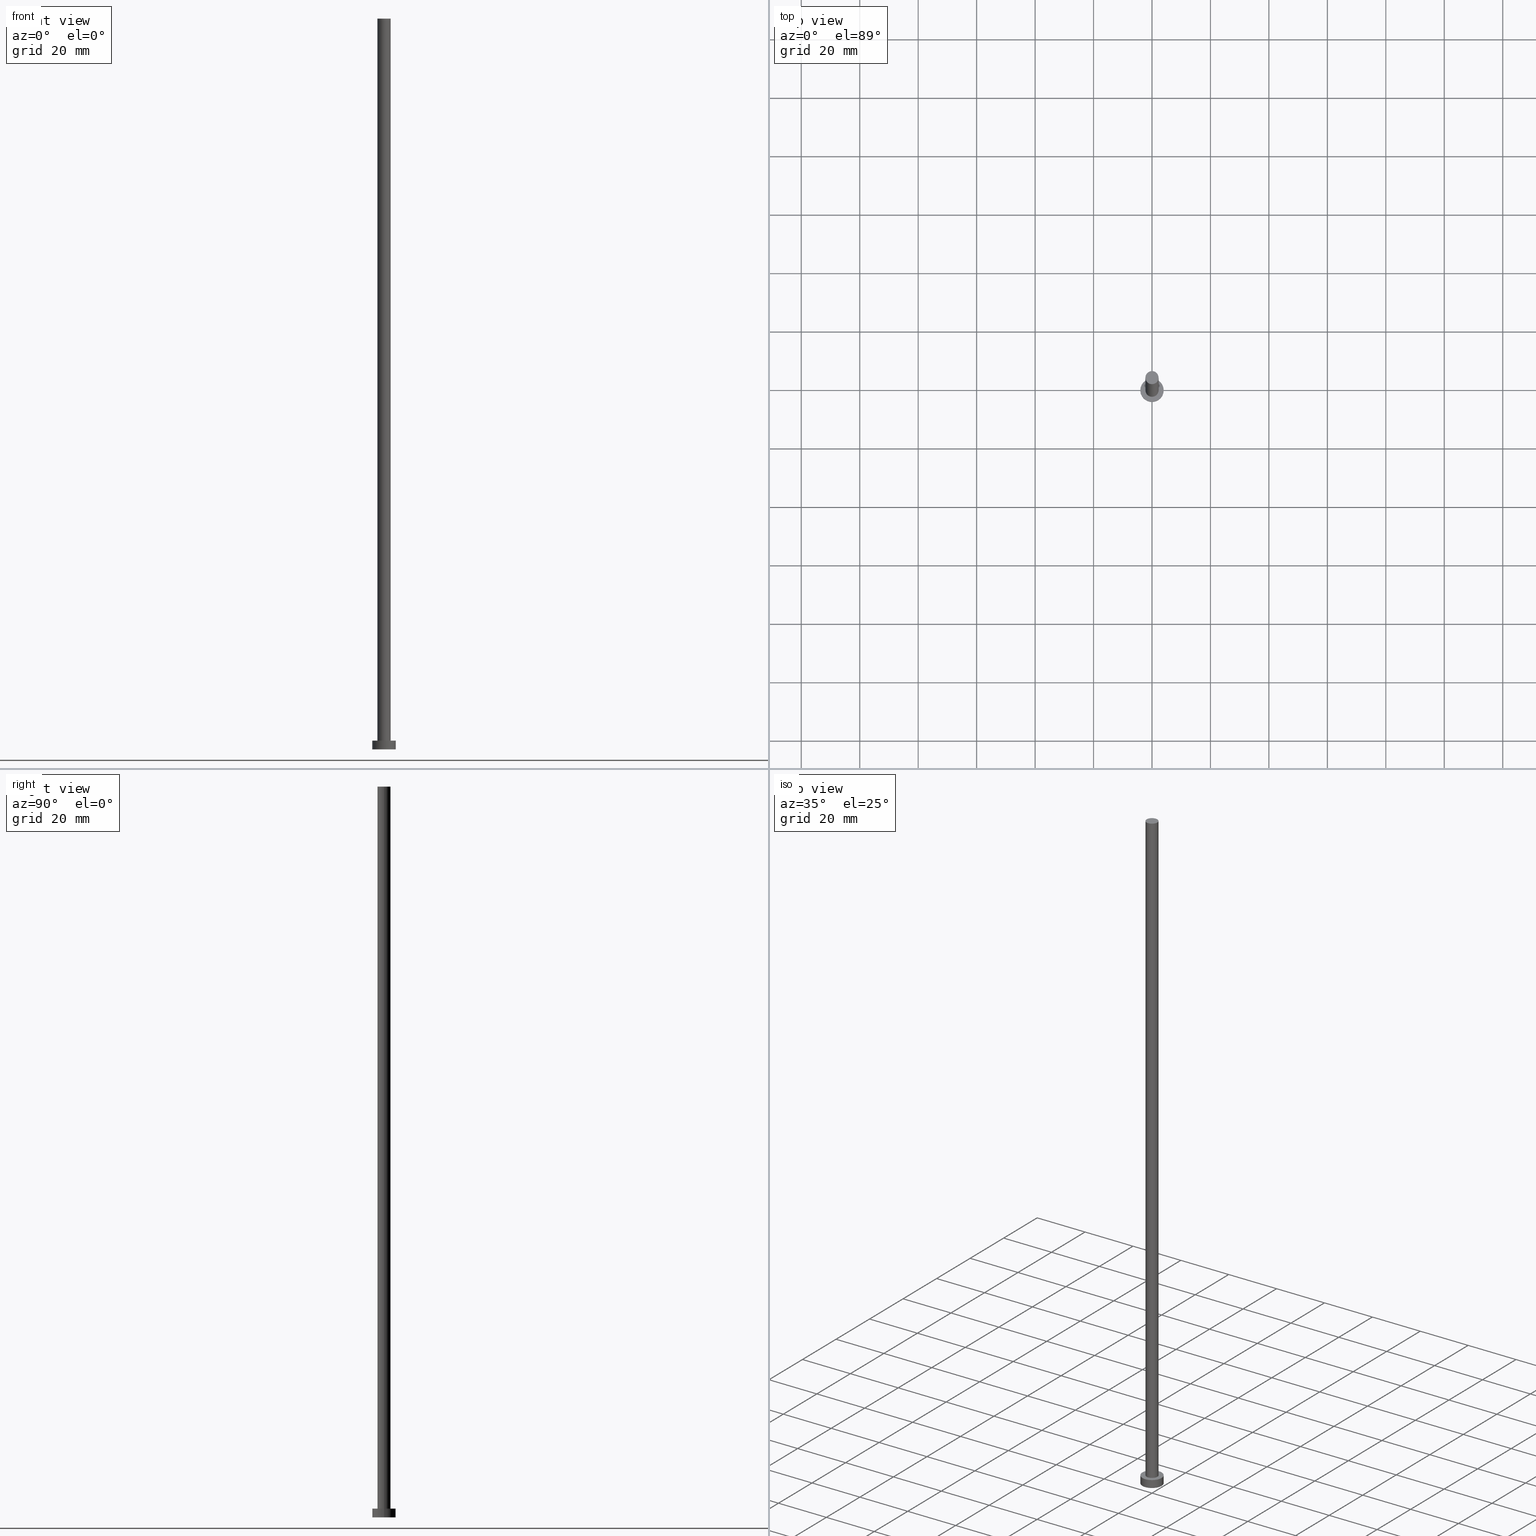
[diagram: canonical four-view strip — front | top / right | iso, engineering-drawing reading convention]
A machine part, canonical four-view strip (front | top / right | iso — engineering-drawing reading convention). The complete STEP part file that produces these views, byte-faithful:
ISO-10303-21;
HEADER;
FILE_DESCRIPTION (( 'STEP AP203' ),
    '1' );
FILE_NAME ('ba29.STEP',
    '2023-02-12T11:53:00',
    ( '' ),
    ( '' ),
    'SwSTEP 2.0',
    'SolidWorks 2019',
    '' );
FILE_SCHEMA (( 'CONFIG_CONTROL_DESIGN' ));
ENDSEC;

DATA;
#1 = CARTESIAN_POINT ( 'NONE',  ( 0.000000000000000000, 0.000000000000000000, 250.0000000000000000 ) ) ;
#2 = EDGE_CURVE ( 'NONE', #163, #103, #219, .T. ) ;
#3 = APPLICATION_PROTOCOL_DEFINITION ( 'international standard', 'config_control_design', 1994, #34 ) ;
#4 = DIRECTION ( 'NONE',  ( 1.000000000000000000, 0.000000000000000000, 0.000000000000000000 ) ) ;
#5 = PRODUCT_DEFINITION ( 'NEZN�M�', '', #229, #173 ) ;
#6 = EDGE_LOOP ( 'NONE', ( #181, #48 ) ) ;
#7 = CIRCLE ( 'NONE', #230, 2.250000000000000000 ) ;
#8 = ORIENTED_EDGE ( 'NONE', *, *, #140, .F. ) ;
#9 = ORIENTED_EDGE ( 'NONE', *, *, #47, .F. ) ;
#10 = MECHANICAL_CONTEXT ( 'NONE', #34, 'mechanical' ) ;
#11 = CYLINDRICAL_SURFACE ( 'NONE', #100, 2.250000000000000000 ) ;
#12 = APPLICATION_PROTOCOL_DEFINITION ( 'international standard', 'config_control_design', 1994, #113 ) ;
#13 = DIRECTION ( 'NONE',  ( -1.000000000000000000, 0.000000000000000000, 0.000000000000000000 ) ) ;
#14 = COORDINATED_UNIVERSAL_TIME_OFFSET ( 1, 0, .AHEAD. ) ;
#15 = PERSON_AND_ORGANIZATION ( #213, #159 ) ;
#16 = PERSON_AND_ORGANIZATION ( #213, #159 ) ;
#17 = AXIS2_PLACEMENT_3D ( 'NONE', #138, #105, #235 ) ;
#18 = LINE ( 'NONE', #134, #25 ) ;
#19 = LOCAL_TIME ( 12, 53, 0.000000000000000000, #14 ) ;
#20 = CIRCLE ( 'NONE', #96, 2.250000000000000000 ) ;
#21 = PLANE ( 'NONE',  #187 ) ;
#22 = CC_DESIGN_PERSON_AND_ORGANIZATION_ASSIGNMENT ( #28, #107, ( #229 ) ) ;
#23 = EDGE_LOOP ( 'NONE', ( #165, #63 ) ) ;
#24 = ORIENTED_EDGE ( 'NONE', *, *, #249, .T. ) ;
#25 = VECTOR ( 'NONE', #217, 1000.000000000000000 ) ;
#26 = PERSON_AND_ORGANIZATION ( #213, #159 ) ;
#27 = DIRECTION ( 'NONE',  ( 0.000000000000000000, 0.000000000000000000, 1.000000000000000000 ) ) ;
#28 = PERSON_AND_ORGANIZATION ( #213, #159 ) ;
#29 = CLOSED_SHELL ( 'NONE', ( #203, #157, #117, #82, #162, #130, #123 ) ) ;
#30 = APPROVAL_ROLE ( '' ) ;
#31 = FACE_OUTER_BOUND ( 'NONE', #206, .T. ) ;
#32 = EDGE_CURVE ( 'NONE', #102, #41, #7, .T. ) ;
#33 = SHAPE_DEFINITION_REPRESENTATION ( #254, #119 ) ;
#34 = APPLICATION_CONTEXT ( 'configuration controlled 3d designs of mechanical parts and assemblies' ) ;
#35 = DIRECTION ( 'NONE',  ( 0.000000000000000000, 0.000000000000000000, 1.000000000000000000 ) ) ;
#36 = DIRECTION ( 'NONE',  ( -0.000000000000000000, -0.000000000000000000, -1.000000000000000000 ) ) ;
#37 = CARTESIAN_POINT ( 'NONE',  ( -4.000000000000000000, 0.000000000000000000, 0.000000000000000000 ) ) ;
#38 = AXIS2_PLACEMENT_3D ( 'NONE', #1, #36, #115 ) ;
#39 = FACE_OUTER_BOUND ( 'NONE', #62, .T. ) ;
#40 = CARTESIAN_POINT ( 'NONE',  ( 0.000000000000000000, 0.000000000000000000, 250.0000000000000000 ) ) ;
#41 = VERTEX_POINT ( 'NONE', #60 ) ;
#42 = DIRECTION ( 'NONE',  ( 0.000000000000000000, 0.000000000000000000, 1.000000000000000000 ) ) ;
#43 = APPROVAL_PERSON_ORGANIZATION ( #167, #109, #185 ) ;
#44 = VERTEX_POINT ( 'NONE', #136 ) ;
#45 = CIRCLE ( 'NONE', #225, 2.250000000000000000 ) ;
#46 = DATE_AND_TIME ( #92, #251 ) ;
#47 = EDGE_CURVE ( 'NONE', #41, #102, #20, .T. ) ;
#48 = ORIENTED_EDGE ( 'NONE', *, *, #227, .F. ) ;
#49 = APPROVAL_STATUS ( 'not_yet_approved' ) ;
#50 = CC_DESIGN_APPROVAL ( #214, ( #209 ) ) ;
#51 = AXIS2_PLACEMENT_3D ( 'NONE', #73, #69, #233 ) ;
#52 = CC_DESIGN_DATE_AND_TIME_ASSIGNMENT ( #46, #66, ( #5 ) ) ;
#53 = COORDINATED_UNIVERSAL_TIME_OFFSET ( 1, 0, .AHEAD. ) ;
#54 = CARTESIAN_POINT ( 'NONE',  ( 0.000000000000000000, 0.000000000000000000, 3.000000000000000000 ) ) ;
#55 = MANIFOLD_SOLID_BREP ( 'P�idat vysunut�m3', #29 ) ;
#56 = DIRECTION ( 'NONE',  ( -0.000000000000000000, -0.000000000000000000, -1.000000000000000000 ) ) ;
#57 = FACE_OUTER_BOUND ( 'NONE', #160, .T. ) ;
#58 = DIRECTION ( 'NONE',  ( -0.000000000000000000, -0.000000000000000000, -1.000000000000000000 ) ) ;
#59 = DIRECTION ( 'NONE',  ( 0.000000000000000000, 0.000000000000000000, 1.000000000000000000 ) ) ;
#60 = CARTESIAN_POINT ( 'NONE',  ( -2.250000000000000000, 0.000000000000000000, 3.000000000000000000 ) ) ;
#61 = EDGE_CURVE ( 'NONE', #232, #44, #45, .T. ) ;
#62 = EDGE_LOOP ( 'NONE', ( #124, #24, #242, #8 ) ) ;
#63 = ORIENTED_EDGE ( 'NONE', *, *, #178, .T. ) ;
#64 = ORIENTED_EDGE ( 'NONE', *, *, #194, .F. ) ;
#65 = VECTOR ( 'NONE', #149, 1000.000000000000000 ) ;
#66 = DATE_TIME_ROLE ( 'creation_date' ) ;
#67 = DATE_AND_TIME ( #172, #19 ) ;
#68 = PERSON_AND_ORGANIZATION ( #213, #159 ) ;
#69 = DIRECTION ( 'NONE',  ( 0.000000000000000000, 0.000000000000000000, 1.000000000000000000 ) ) ;
#70 = EDGE_CURVE ( 'NONE', #44, #102, #161, .T. ) ;
#71 = COORDINATED_UNIVERSAL_TIME_OFFSET ( 1, 0, .AHEAD. ) ;
#72 = AXIS2_PLACEMENT_3D ( 'NONE', #238, #175, #179 ) ;
#73 = CARTESIAN_POINT ( 'NONE',  ( 0.000000000000000000, 0.000000000000000000, 3.000000000000000000 ) ) ;
#74 = LINE ( 'NONE', #98, #252 ) ;
#75 = APPROVAL_PERSON_ORGANIZATION ( #68, #223, #110 ) ;
#76 = CARTESIAN_POINT ( 'NONE',  ( 0.000000000000000000, 0.000000000000000000, 3.000000000000000000 ) ) ;
#77 = PRODUCT_RELATED_PRODUCT_CATEGORY ( 'detail', '', ( #201 ) ) ;
#78 = LINE ( 'NONE', #197, #246 ) ;
#79 = DIRECTION ( 'NONE',  ( -1.000000000000000000, 0.000000000000000000, 0.000000000000000000 ) ) ;
#80 = AXIS2_PLACEMENT_3D ( 'NONE', #158, #59, #222 ) ;
#81 = VERTEX_POINT ( 'NONE', #174 ) ;
#82 = ADVANCED_FACE ( 'NONE', ( #253, #191 ), #145, .T. ) ;
#83 = ORIENTED_EDGE ( 'NONE', *, *, #154, .F. ) ;
#84 = AXIS2_PLACEMENT_3D ( 'NONE', #54, #250, #171 ) ;
#85 = EDGE_LOOP ( 'NONE', ( #184, #205 ) ) ;
#86 = ORIENTED_EDGE ( 'NONE', *, *, #70, .F. ) ;
#87 = CC_DESIGN_PERSON_AND_ORGANIZATION_ASSIGNMENT ( #188, #211, ( #209 ) ) ;
#88 = AXIS2_PLACEMENT_3D ( 'NONE', #237, #200, #133 ) ;
#89 = CARTESIAN_POINT ( 'NONE',  ( 0.000000000000000000, 0.000000000000000000, 250.0000000000000000 ) ) ;
#90 = COORDINATED_UNIVERSAL_TIME_OFFSET ( 1, 0, .AHEAD. ) ;
#91 = APPROVAL_DATE_TIME ( #67, #214 ) ;
#92 = CALENDAR_DATE ( 2023, 12, 2 ) ;
#93 =( GEOMETRIC_REPRESENTATION_CONTEXT ( 3 ) GLOBAL_UNCERTAINTY_ASSIGNED_CONTEXT ( ( #146 ) ) GLOBAL_UNIT_ASSIGNED_CONTEXT ( ( #116, #104, #231 ) ) REPRESENTATION_CONTEXT ( 'NONE', 'WORKASPACE' ) );
#94 = CARTESIAN_POINT ( 'NONE',  ( 0.000000000000000000, 0.000000000000000000, 3.000000000000000000 ) ) ;
#95 = LOCAL_TIME ( 12, 53, 0.000000000000000000, #71 ) ;
#96 = AXIS2_PLACEMENT_3D ( 'NONE', #101, #224, #226 ) ;
#97 = CC_DESIGN_PERSON_AND_ORGANIZATION_ASSIGNMENT ( #168, #126, ( #229 ) ) ;
#98 = CARTESIAN_POINT ( 'NONE',  ( -4.000000000000000000, 0.000000000000000000, 3.000000000000000000 ) ) ;
#99 = DIRECTION ( 'NONE',  ( 0.000000000000000000, 0.000000000000000000, 1.000000000000000000 ) ) ;
#100 = AXIS2_PLACEMENT_3D ( 'NONE', #89, #189, #13 ) ;
#101 = CARTESIAN_POINT ( 'NONE',  ( 0.000000000000000000, 0.000000000000000000, 3.000000000000000000 ) ) ;
#102 = VERTEX_POINT ( 'NONE', #152 ) ;
#103 = VERTEX_POINT ( 'NONE', #236 ) ;
#104 =( NAMED_UNIT ( * ) PLANE_ANGLE_UNIT ( ) SI_UNIT ( $, .RADIAN. ) );
#105 = DIRECTION ( 'NONE',  ( 0.000000000000000000, 0.000000000000000000, 1.000000000000000000 ) ) ;
#106 = DIRECTION ( 'NONE',  ( 1.000000000000000000, 0.000000000000000000, 0.000000000000000000 ) ) ;
#107 = PERSON_AND_ORGANIZATION_ROLE ( 'creator' ) ;
#108 = FACE_OUTER_BOUND ( 'NONE', #183, .T. ) ;
#109 = APPROVAL ( #111, 'NEUR�EN�' ) ;
#110 = APPROVAL_ROLE ( '' ) ;
#111 = APPROVAL_STATUS ( 'not_yet_approved' ) ;
#112 = PERSON_AND_ORGANIZATION_ROLE ( 'creator' ) ;
#113 = APPLICATION_CONTEXT ( 'configuration controlled 3d designs of mechanical parts and assemblies' ) ;
#114 = DIRECTION ( 'NONE',  ( 1.000000000000000000, 0.000000000000000000, -0.000000000000000000 ) ) ;
#115 = DIRECTION ( 'NONE',  ( -1.000000000000000000, 0.000000000000000000, 0.000000000000000000 ) ) ;
#116 =( LENGTH_UNIT ( ) NAMED_UNIT ( * ) SI_UNIT ( .MILLI., .METRE. ) );
#117 = ADVANCED_FACE ( 'NONE', ( #108 ), #129, .T. ) ;
#118 = DIRECTION ( 'NONE',  ( -0.000000000000000000, -0.000000000000000000, -1.000000000000000000 ) ) ;
#119 = ADVANCED_BREP_SHAPE_REPRESENTATION ( 'ba29', ( #55, #17 ), #93 ) ;
#120 = AXIS2_PLACEMENT_3D ( 'NONE', #76, #216, #218 ) ;
#121 = ORIENTED_EDGE ( 'NONE', *, *, #154, .T. ) ;
#122 = ORIENTED_EDGE ( 'NONE', *, *, #249, .F. ) ;
#123 = ADVANCED_FACE ( 'NONE', ( #127 ), #132, .T. ) ;
#124 = ORIENTED_EDGE ( 'NONE', *, *, #170, .F. ) ;
#125 = DATE_AND_TIME ( #169, #255 ) ;
#126 = PERSON_AND_ORGANIZATION_ROLE ( 'design_supplier' ) ;
#127 = FACE_OUTER_BOUND ( 'NONE', #23, .T. ) ;
#128 = SECURITY_CLASSIFICATION_LEVEL ( 'unclassified' ) ;
#129 = CYLINDRICAL_SURFACE ( 'NONE', #84, 4.000000000000000000 ) ;
#130 = ADVANCED_FACE ( 'NONE', ( #31 ), #11, .T. ) ;
#131 = APPROVAL_DATE_TIME ( #190, #109 ) ;
#132 = PLANE ( 'NONE',  #198 ) ;
#133 = DIRECTION ( 'NONE',  ( 1.000000000000000000, 0.000000000000000000, 0.000000000000000000 ) ) ;
#134 = CARTESIAN_POINT ( 'NONE',  ( 4.000000000000000000, 4.898587196589412829E-16, 3.000000000000000000 ) ) ;
#135 = CYLINDRICAL_SURFACE ( 'NONE', #177, 4.000000000000000000 ) ;
#136 = CARTESIAN_POINT ( 'NONE',  ( 2.250000000000000000, 2.755455298081544285E-16, 250.0000000000000000 ) ) ;
#137 = CC_DESIGN_APPROVAL ( #223, ( #229 ) ) ;
#138 = CARTESIAN_POINT ( 'NONE',  ( 0.000000000000000000, 0.000000000000000000, 0.000000000000000000 ) ) ;
#139 = ORIENTED_EDGE ( 'NONE', *, *, #178, .F. ) ;
#140 = EDGE_CURVE ( 'NONE', #81, #163, #74, .T. ) ;
#141 = ORIENTED_EDGE ( 'NONE', *, *, #2, .T. ) ;
#142 = VERTEX_POINT ( 'NONE', #155 ) ;
#143 = ORIENTED_EDGE ( 'NONE', *, *, #47, .T. ) ;
#144 = COORDINATED_UNIVERSAL_TIME_OFFSET ( 1, 0, .AHEAD. ) ;
#145 = PLANE ( 'NONE',  #51 ) ;
#146 = UNCERTAINTY_MEASURE_WITH_UNIT (LENGTH_MEASURE( 1.000000000000000082E-05 ), #116, 'distance_accuracy_value', 'NONE');
#147 = CARTESIAN_POINT ( 'NONE',  ( 2.250000000000000000, 2.755455298081544285E-16, 250.0000000000000000 ) ) ;
#148 = APPROVAL_DATE_TIME ( #125, #223 ) ;
#149 = DIRECTION ( 'NONE',  ( -0.000000000000000000, -0.000000000000000000, -1.000000000000000000 ) ) ;
#150 = CIRCLE ( 'NONE', #80, 4.000000000000000000 ) ;
#151 = DATE_AND_TIME ( #212, #95 ) ;
#152 = CARTESIAN_POINT ( 'NONE',  ( 2.250000000000000000, 2.755455298081544285E-16, 3.000000000000000000 ) ) ;
#153 = CARTESIAN_POINT ( 'NONE',  ( 0.000000000000000000, 0.000000000000000000, 0.000000000000000000 ) ) ;
#154 = EDGE_CURVE ( 'NONE', #232, #41, #78, .T. ) ;
#155 = CARTESIAN_POINT ( 'NONE',  ( 4.000000000000000000, 4.898587196589412829E-16, 3.000000000000000000 ) ) ;
#156 = CYLINDRICAL_SURFACE ( 'NONE', #38, 2.250000000000000000 ) ;
#157 = ADVANCED_FACE ( 'NONE', ( #39 ), #135, .T. ) ;
#158 = CARTESIAN_POINT ( 'NONE',  ( 0.000000000000000000, 0.000000000000000000, 0.000000000000000000 ) ) ;
#159 = ORGANIZATION ( 'NEUR�EN�', 'NEUR�EN�', '' ) ;
#160 = EDGE_LOOP ( 'NONE', ( #139, #164, #244, #83 ) ) ;
#161 = LINE ( 'NONE', #147, #65 ) ;
#162 = ADVANCED_FACE ( 'NONE', ( #220 ), #21, .F. ) ;
#163 = VERTEX_POINT ( 'NONE', #37 ) ;
#164 = ORIENTED_EDGE ( 'NONE', *, *, #70, .T. ) ;
#165 = ORIENTED_EDGE ( 'NONE', *, *, #61, .T. ) ;
#166 = CC_DESIGN_PERSON_AND_ORGANIZATION_ASSIGNMENT ( #15, #208, ( #201 ) ) ;
#167 = PERSON_AND_ORGANIZATION ( #213, #159 ) ;
#168 = PERSON_AND_ORGANIZATION ( #213, #159 ) ;
#169 = CALENDAR_DATE ( 2023, 12, 2 ) ;
#170 = EDGE_CURVE ( 'NONE', #142, #81, #199, .T. ) ;
#171 = DIRECTION ( 'NONE',  ( -1.000000000000000000, 0.000000000000000000, 0.000000000000000000 ) ) ;
#172 = CALENDAR_DATE ( 2023, 12, 2 ) ;
#173 = DESIGN_CONTEXT ( 'detailed design', #113, 'design' ) ;
#174 = CARTESIAN_POINT ( 'NONE',  ( -4.000000000000000000, 0.000000000000000000, 3.000000000000000000 ) ) ;
#175 = DIRECTION ( 'NONE',  ( 0.000000000000000000, 0.000000000000000000, 1.000000000000000000 ) ) ;
#176 = DIRECTION ( 'NONE',  ( 1.000000000000000000, 0.000000000000000000, -0.000000000000000000 ) ) ;
#177 = AXIS2_PLACEMENT_3D ( 'NONE', #94, #58, #79 ) ;
#178 = EDGE_CURVE ( 'NONE', #44, #232, #180, .T. ) ;
#179 = DIRECTION ( 'NONE',  ( 1.000000000000000000, 0.000000000000000000, 0.000000000000000000 ) ) ;
#180 = CIRCLE ( 'NONE', #72, 2.250000000000000000 ) ;
#181 = ORIENTED_EDGE ( 'NONE', *, *, #2, .F. ) ;
#182 = DIRECTION ( 'NONE',  ( 1.000000000000000000, 0.000000000000000000, 0.000000000000000000 ) ) ;
#183 = EDGE_LOOP ( 'NONE', ( #122, #64, #202, #141 ) ) ;
#184 = ORIENTED_EDGE ( 'NONE', *, *, #194, .T. ) ;
#185 = APPROVAL_ROLE ( '' ) ;
#186 = LOCAL_TIME ( 12, 53, 0.000000000000000000, #53 ) ;
#187 = AXIS2_PLACEMENT_3D ( 'NONE', #153, #99, #176 ) ;
#188 = PERSON_AND_ORGANIZATION ( #213, #159 ) ;
#189 = DIRECTION ( 'NONE',  ( -0.000000000000000000, -0.000000000000000000, -1.000000000000000000 ) ) ;
#190 = DATE_AND_TIME ( #247, #186 ) ;
#191 = FACE_OUTER_BOUND ( 'NONE', #85, .T. ) ;
#192 = CC_DESIGN_APPROVAL ( #109, ( #5 ) ) ;
#193 = AXIS2_PLACEMENT_3D ( 'NONE', #207, #27, #106 ) ;
#194 = EDGE_CURVE ( 'NONE', #81, #142, #221, .T. ) ;
#195 = CARTESIAN_POINT ( 'NONE',  ( -2.250000000000000000, 0.000000000000000000, 250.0000000000000000 ) ) ;
#196 = CC_DESIGN_SECURITY_CLASSIFICATION ( #209, ( #229 ) ) ;
#197 = CARTESIAN_POINT ( 'NONE',  ( -2.250000000000000000, 0.000000000000000000, 250.0000000000000000 ) ) ;
#198 = AXIS2_PLACEMENT_3D ( 'NONE', #215, #35, #114 ) ;
#199 = CIRCLE ( 'NONE', #88, 4.000000000000000000 ) ;
#200 = DIRECTION ( 'NONE',  ( 0.000000000000000000, 0.000000000000000000, 1.000000000000000000 ) ) ;
#201 = PRODUCT ( 'ba29', 'ba29', '', ( #10 ) ) ;
#202 = ORIENTED_EDGE ( 'NONE', *, *, #140, .T. ) ;
#203 = ADVANCED_FACE ( 'NONE', ( #57 ), #156, .T. ) ;
#204 = EDGE_LOOP ( 'NONE', ( #9, #228 ) ) ;
#205 = ORIENTED_EDGE ( 'NONE', *, *, #170, .T. ) ;
#206 = EDGE_LOOP ( 'NONE', ( #86, #245, #121, #143 ) ) ;
#207 = CARTESIAN_POINT ( 'NONE',  ( 0.000000000000000000, 0.000000000000000000, 0.000000000000000000 ) ) ;
#208 = PERSON_AND_ORGANIZATION_ROLE ( 'design_owner' ) ;
#209 = SECURITY_CLASSIFICATION ( '', '', #128 ) ;
#210 = DATE_TIME_ROLE ( 'classification_date' ) ;
#211 = PERSON_AND_ORGANIZATION_ROLE ( 'classification_officer' ) ;
#212 = CALENDAR_DATE ( 2023, 12, 2 ) ;
#213 = PERSON ( 'NEUR�EN�', 'NEUR�EN�', 'NEUR�EN�', ('NEUR�EN�'), ('NEUR�EN�'), ('NEUR�EN�') ) ;
#214 = APPROVAL ( #248, 'NEUR�EN�' ) ;
#215 = CARTESIAN_POINT ( 'NONE',  ( 0.000000000000000000, 0.000000000000000000, 250.0000000000000000 ) ) ;
#216 = DIRECTION ( 'NONE',  ( 0.000000000000000000, 0.000000000000000000, 1.000000000000000000 ) ) ;
#217 = DIRECTION ( 'NONE',  ( -0.000000000000000000, -0.000000000000000000, -1.000000000000000000 ) ) ;
#218 = DIRECTION ( 'NONE',  ( 1.000000000000000000, 0.000000000000000000, 0.000000000000000000 ) ) ;
#219 = CIRCLE ( 'NONE', #193, 4.000000000000000000 ) ;
#220 = FACE_OUTER_BOUND ( 'NONE', #6, .T. ) ;
#221 = CIRCLE ( 'NONE', #120, 4.000000000000000000 ) ;
#222 = DIRECTION ( 'NONE',  ( 1.000000000000000000, 0.000000000000000000, 0.000000000000000000 ) ) ;
#223 = APPROVAL ( #49, 'NEUR�EN�' ) ;
#224 = DIRECTION ( 'NONE',  ( 0.000000000000000000, 0.000000000000000000, 1.000000000000000000 ) ) ;
#225 = AXIS2_PLACEMENT_3D ( 'NONE', #40, #241, #4 ) ;
#226 = DIRECTION ( 'NONE',  ( 1.000000000000000000, 0.000000000000000000, 0.000000000000000000 ) ) ;
#227 = EDGE_CURVE ( 'NONE', #103, #163, #150, .T. ) ;
#228 = ORIENTED_EDGE ( 'NONE', *, *, #32, .F. ) ;
#229 = PRODUCT_DEFINITION_FORMATION_WITH_SPECIFIED_SOURCE ( 'LIBOVOLN�', '', #201, .NOT_KNOWN. ) ;
#230 = AXIS2_PLACEMENT_3D ( 'NONE', #239, #42, #182 ) ;
#231 =( NAMED_UNIT ( * ) SI_UNIT ( $, .STERADIAN. ) SOLID_ANGLE_UNIT ( ) );
#232 = VERTEX_POINT ( 'NONE', #195 ) ;
#233 = DIRECTION ( 'NONE',  ( 1.000000000000000000, 0.000000000000000000, -0.000000000000000000 ) ) ;
#234 = CC_DESIGN_DATE_AND_TIME_ASSIGNMENT ( #151, #210, ( #209 ) ) ;
#235 = DIRECTION ( 'NONE',  ( 1.000000000000000000, 0.000000000000000000, 0.000000000000000000 ) ) ;
#236 = CARTESIAN_POINT ( 'NONE',  ( 4.000000000000000000, 4.898587196589412829E-16, 0.000000000000000000 ) ) ;
#237 = CARTESIAN_POINT ( 'NONE',  ( 0.000000000000000000, 0.000000000000000000, 3.000000000000000000 ) ) ;
#238 = CARTESIAN_POINT ( 'NONE',  ( 0.000000000000000000, 0.000000000000000000, 250.0000000000000000 ) ) ;
#239 = CARTESIAN_POINT ( 'NONE',  ( 0.000000000000000000, 0.000000000000000000, 3.000000000000000000 ) ) ;
#240 = APPROVAL_PERSON_ORGANIZATION ( #16, #214, #30 ) ;
#241 = DIRECTION ( 'NONE',  ( 0.000000000000000000, 0.000000000000000000, 1.000000000000000000 ) ) ;
#242 = ORIENTED_EDGE ( 'NONE', *, *, #227, .T. ) ;
#243 = CC_DESIGN_PERSON_AND_ORGANIZATION_ASSIGNMENT ( #26, #112, ( #5 ) ) ;
#244 = ORIENTED_EDGE ( 'NONE', *, *, #32, .T. ) ;
#245 = ORIENTED_EDGE ( 'NONE', *, *, #61, .F. ) ;
#246 = VECTOR ( 'NONE', #56, 1000.000000000000000 ) ;
#247 = CALENDAR_DATE ( 2023, 12, 2 ) ;
#248 = APPROVAL_STATUS ( 'not_yet_approved' ) ;
#249 = EDGE_CURVE ( 'NONE', #142, #103, #18, .T. ) ;
#250 = DIRECTION ( 'NONE',  ( -0.000000000000000000, -0.000000000000000000, -1.000000000000000000 ) ) ;
#251 = LOCAL_TIME ( 12, 53, 0.000000000000000000, #90 ) ;
#252 = VECTOR ( 'NONE', #118, 1000.000000000000000 ) ;
#253 = FACE_BOUND ( 'NONE', #204, .T. ) ;
#254 = PRODUCT_DEFINITION_SHAPE ( 'NONE', 'NONE',  #5 ) ;
#255 = LOCAL_TIME ( 12, 53, 0.000000000000000000, #144 ) ;
ENDSEC;
END-ISO-10303-21;
